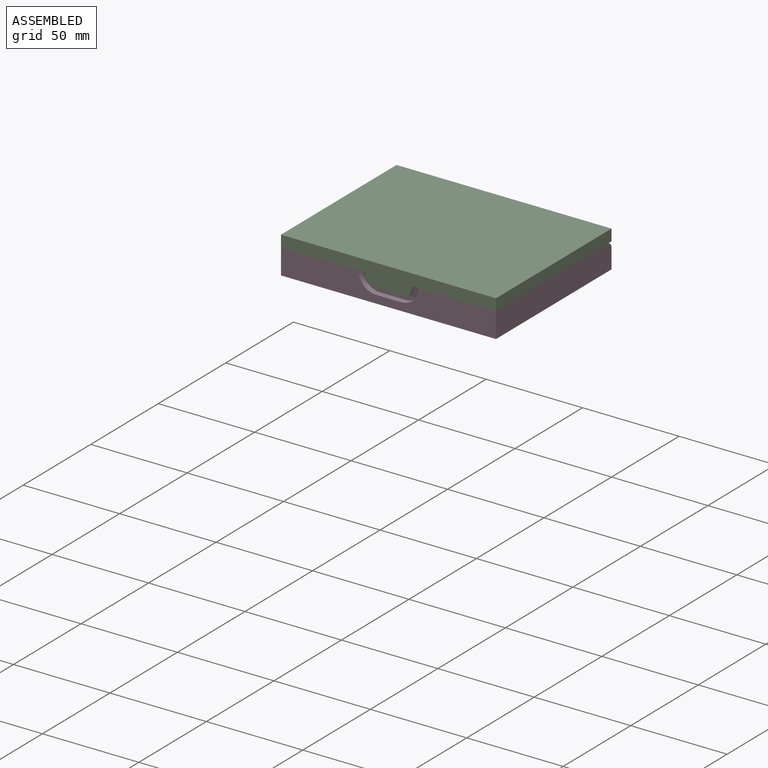
[diagram: assembled view]
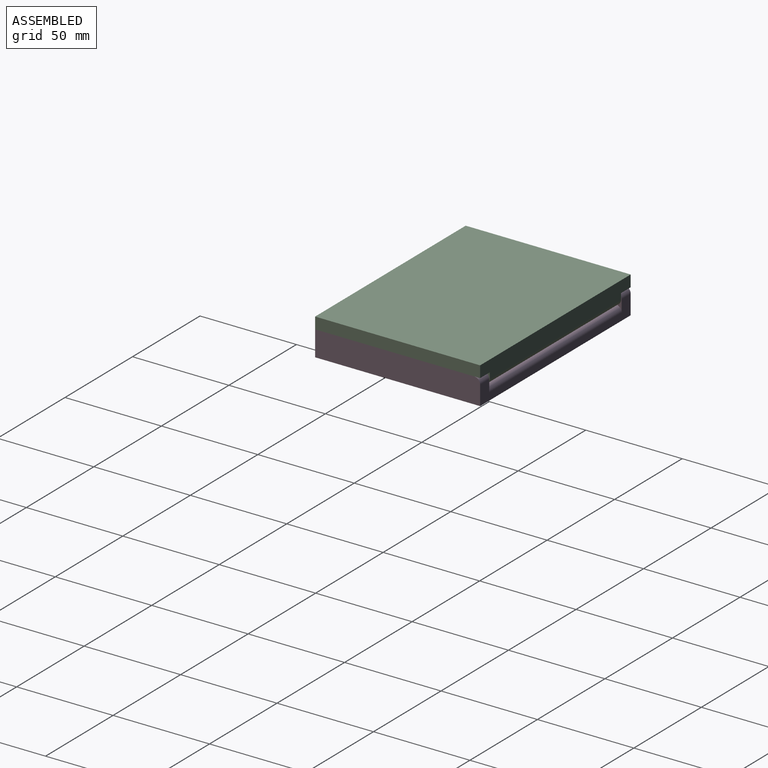
[diagram: assembled view, second angle]
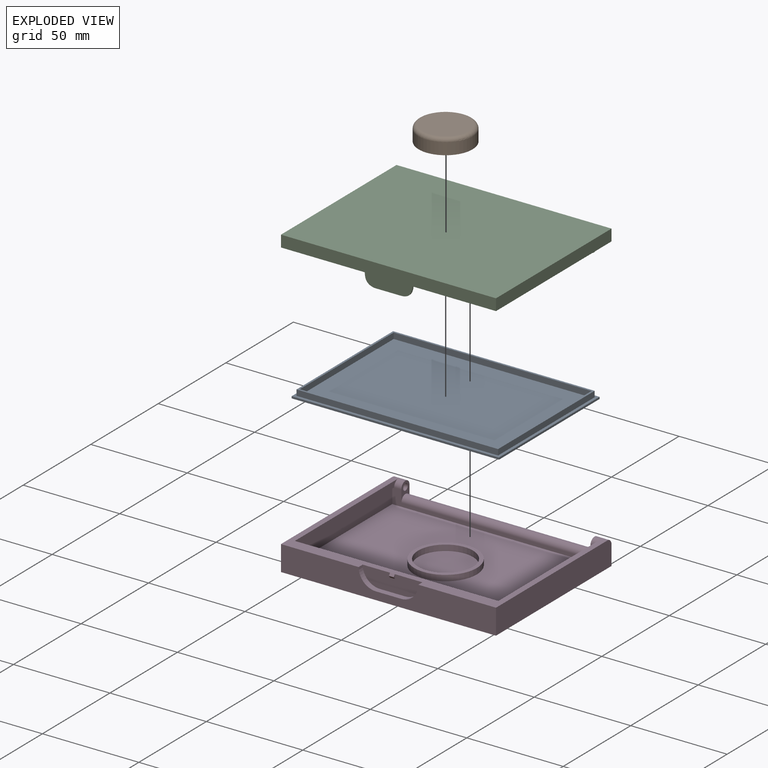
[diagram: exploded view]
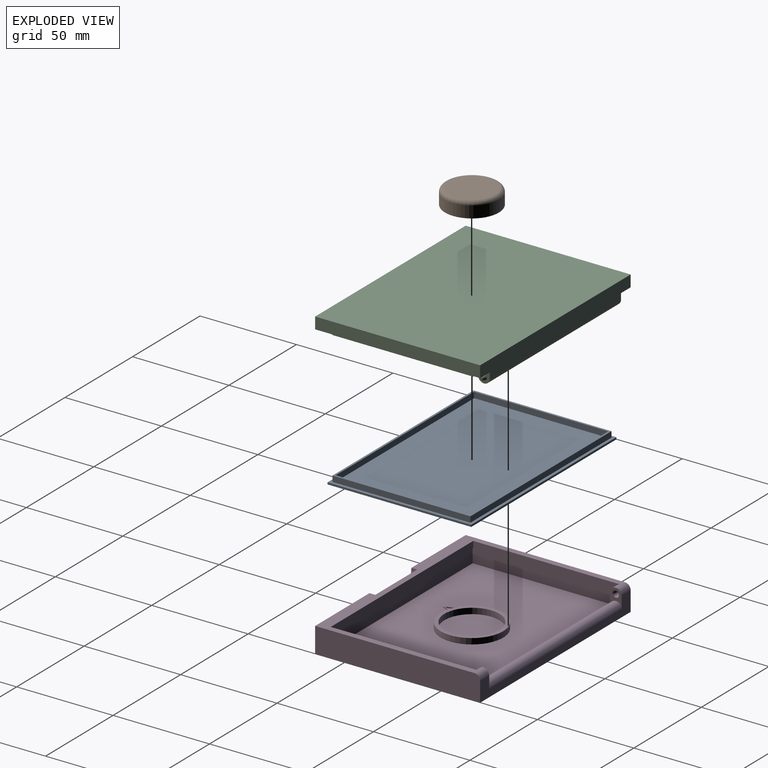
[diagram: exploded view, second angle]
ASSEMBLY  parts=4 mates=8
PART A: 22 faces, bbox 107.5x74.5x6.5 mm
  f0: plane 107.5x1mm, normal (0,1,0), area 107.5mm2, adj f1,f3,f4,f5
  f1: plane 74.5x1mm, normal (-1,0,0), area 74.5mm2, adj f0,f2,f4,f5
  f2: plane 107.5x1mm, normal (0,-1,0), area 107.5mm2, adj f1,f3,f4,f5
  f3: plane 74.5x1mm, normal (1,0,0), area 74.5mm2, adj f0,f2,f4,f5
  f4: plane 107.5x74.5mm, normal (0,0,-1), area 7725.2mm2, adj f0,f1,f2,f3,f16
  f5: plane 107.5x74.5mm, normal (0,0,1), area 537mm2, adj f0,f1,f2,f3,f6,f7,f8,f9
  f6: plane 104.5x3mm, normal (0,1,0), area 313.5mm2, adj f5,f7,f9,f10
  f7: plane 71.5x3mm, normal (-1,0,0), area 214.5mm2, adj f5,f6,f8,f10
  f8: plane 104.5x3mm, normal (0,-1,0), area 313.5mm2, adj f5,f7,f9,f10
  f9: plane 71.5x3mm, normal (1,0,0), area 214.5mm2, adj f5,f6,f8,f10
  f10: plane 104.5x71.5mm, normal (0,0,1), area 348mm2, adj f6,f7,f8,f9,f11,f12,f13,f14
  f11: plane 102.5x3mm, normal (0,1,0), area 307.5mm2, adj f10,f12,f14,f15
  f12: plane 69.5x3mm, normal (-1,0,0), area 208.5mm2, adj f10,f11,f13,f15
  f13: plane 102.5x3mm, normal (0,-1,0), area 307.5mm2, adj f10,f12,f14,f15
  f14: plane 69.5x3mm, normal (1,0,0), area 208.5mm2, adj f10,f11,f13,f15
  f15: plane 102.5x69.5mm, normal (0,0,1), area 7123.7mm2, adj f11,f12,f13,f14
  f16: cylinder r=9.5mm len=19mm, axis (0,0,1), area 59.7mm2, adj f4,f17
  f17: plane 19x19mm, normal (0,0,-1), area 267.6mm2, adj f16,f19
  f18: cylinder r=1mm len=2mm, axis (0,0,1), area 9.4mm2, adj f20,f21
  f19: cylinder r=2.25mm len=4.5mm, axis (0,0,1), area 21.2mm2, adj f17,f20
  f20: plane 4.5x4.5mm, normal (0,0,-1), area 12.8mm2, adj f18,f19
  f21: plane 2x2mm, normal (0,0,-1), area 3.1mm2, adj f18
PART B: 4 faces, bbox 30.3x30.3x8 mm
  f0: cylinder r=14mm len=28mm, axis (0,0,1), area 527.8mm2, adj f1,f3
  f1: plane 28x28mm, normal (0,0,-1), area 615.8mm2, adj f0
  f2: plane 24x24mm, normal (0,0,1), area 452.4mm2, adj f3
  f3: torus R=12mm, axis (0,0,1), area 262mm2, adj f0,f2
PART C: 45 faces, bbox 112x86.2x12.5 mm
  f0: plane 101.5x71.55mm, normal (0,0,-1), area 7259.1mm2, adj f4,f21,f22,f23,f24,f25,f26,f27
  f1: plane 21.09x4.49mm, normal (0,1,0), area 67.7mm2, adj f2,f18,f19,f20,f33,f34,f35
  f2: plane 112.01x86.06mm, normal (0,0,-1), area 1247.5mm2, adj f1,f5,f6,f7,f9,f11,f12,f14
  f3: plane 111.5x85.55mm, normal (0,0,1), area 9538.8mm2, adj f5,f6,f11,f15
  f4: plane 101.5x7mm, normal (0,-1,0), area 684.7mm2, adj f0,f7,f9,f10,f12,f14,f36,f38
  f5: plane 111.5x9mm, normal (0,1,0), area 960.6mm2, adj f2,f3,f6,f7,f10,f11,f12
  f6: plane 85.55x6mm, normal (-1,0,0), area 513.3mm2, adj f2,f3,f5,f15
  f7: plane 9x6mm, normal (-1,0,0), area 27mm2, adj f2,f4,f5,f8,f9,f10
  f8: sphere r=1.5mm, area 14.1mm2, adj f7
  f9: cylinder r=3mm len=3mm, axis (1,0,0), area 10.1mm2, adj f2,f4,f7,f38
  f10: cylinder r=3mm len=97.2mm, axis (-1,0,0), area 916.1mm2, adj f4,f5,f7,f12
  f11: plane 85.55x6mm, normal (1,0,0), area 513.3mm2, adj f2,f3,f5,f15
  f12: plane 9x6mm, normal (1,0,0), area 27mm2, adj f2,f4,f5,f10,f13,f14
  f13: sphere r=1.5mm, area 14.1mm2, adj f12
  f14: cylinder r=3mm len=3mm, axis (-1,0,0), area 10.1mm2, adj f2,f4,f12,f36
  f15: plane 111.5x12mm, normal (0,-1,0), area 804.6mm2, adj f2,f3,f6,f11,f16,f31,f32
  f16: plane 12.6x0.8mm, normal (0,0,-1), area 10.1mm2, adj f15,f31,f32,f34
  f17: plane 4x2.5mm, normal (0,1,0), area 10mm2, adj f2,f18,f19,f20
  f18: plane 4x1.2mm, normal (0,0,1), area 4.8mm2, adj f1,f17,f19,f20
  f19: plane 2.5x1.2mm, normal (1,0,0), area 3mm2, adj f1,f2,f17,f18
  f20: plane 2.5x1.2mm, normal (-1,0,0), area 3mm2, adj f1,f2,f17,f18
  f21: plane 0.5x0.47mm, normal (0,-1,0), area 0.2mm2, adj f0,f22,f29,f30
  f22: plane 2.41x0.85mm, normal (-0.94,-0.33,0), area 1.3mm2, adj f0,f21,f23,f30
  f23: extruded ~0.83x0.5mm, area 0.4mm2, adj f0,f22,f24,f30
  f24: extruded ~0.81x0.5mm, area 0.4mm2, adj f0,f23,f25,f30
  f25: plane 2.42x0.86mm, normal (0.94,-0.33,0), area 1.3mm2, adj f0,f24,f26,f30
  f26: plane 0.5x0.46mm, normal (0,-1,0), area 0.2mm2, adj f0,f25,f27,f30
  f27: plane 3.74x1.34mm, normal (-0.94,0.34,0), area 2mm2, adj f0,f26,f28,f30
  f28: plane 0.5x0.43mm, normal (0,1,0), area 0.2mm2, adj f0,f27,f29,f30
  f29: plane 3.74x1.35mm, normal (0.94,0.34,0), area 2mm2, adj f0,f21,f28,f30
  f30: plane 3.74x3.12mm, normal (0,0,-1), area 3.2mm2, adj f21,f22,f23,f24,f25,f26,f27,f28
  f31: bspline ~6x6mm, area 7.8mm2, adj f2,f15,f16,f35
  f32: bspline ~6x6mm, area 7.8mm2, adj f2,f15,f16,f33
  f33: bspline ~6.18x6mm, area 24.6mm2, adj f1,f2,f32,f34
  f34: bspline ~12.6x2mm, area 36.9mm2, adj f1,f16,f33,f35
  f35: bspline ~6.18x6mm, area 24.6mm2, adj f1,f2,f31,f34
  f36: plane 74.55x6.25mm, normal (-1,0,0), area 449.1mm2, adj f0,f2,f4,f14,f37,f40,f44
  f37: plane 101.5x6.25mm, normal (0,1,0), area 634.4mm2, adj f0,f36,f38,f44
  f38: plane 74.55x6.25mm, normal (1,0,0), area 449.1mm2, adj f0,f2,f4,f9,f37,f39,f44
  f39: plane 2.25x1.5mm, normal (0,1,0), area 3.4mm2, adj f2,f38,f43,f44
  f40: plane 2.25x1.5mm, normal (0,1,0), area 3.4mm2, adj f2,f36,f41,f44
  f41: plane 73.05x2.25mm, normal (1,0,0), area 164.4mm2, adj f2,f40,f42,f44
  f42: plane 104.5x2.25mm, normal (0,-1,0), area 235.1mm2, adj f2,f41,f43,f44
  f43: plane 73.05x2.25mm, normal (-1,0,0), area 164.4mm2, adj f2,f39,f42,f44
  f44: plane 104.5x73.05mm, normal (0,0,-1), area 371.4mm2, adj f36,f37,f38,f39,f40,f41,f42,f43
PART D: 45 faces, bbox 111.5x85.6x13.1 mm
  f0: cylinder r=3mm len=6.75mm, axis (1,0,0), area 49.5mm2, adj f3,f5,f6,f8,f12,f39
  f1: plane 74.55x8.1mm, normal (-1,0,0), area 603.9mm2, adj f8,f10,f11,f40
  f2: cylinder r=3mm len=6.75mm, axis (-1,0,0), area 49.5mm2, adj f3,f5,f8,f15,f16,f37
  f3: plane 111.5x82.55mm, normal (0,0,1), area 1035.3mm2, adj f0,f2,f4,f6,f15,f19,f20,f35
  f4: plane 111.5x13.1mm, normal (0,-1,0), area 1216.4mm2, adj f3,f6,f7,f15,f18,f35,f36
  f5: plane 111.5x10.1mm, normal (0,1,0), area 518.6mm2, adj f0,f2,f6,f7,f12,f14,f15,f16
  f6: plane 85.55x13.1mm, normal (-1,0,0), area 1118.8mm2, adj f0,f3,f4,f5,f7
  f7: plane 111.5x85.55mm, normal (0,0,-1), area 9538.8mm2, adj f4,f5,f6,f15
  f8: plane 107.5x8.1mm, normal (0,-1,0), area 263.2mm2, adj f0,f1,f2,f9,f11,f12,f14,f16
  f9: plane 74.55x8.1mm, normal (1,0,0), area 603.9mm2, adj f8,f10,f11,f40
  f10: plane 107.5x8.1mm, normal (0,1,0), area 870.8mm2, adj f1,f9,f11,f40
  f11: plane 107.5x74.55mm, normal (0,0,1), area 7180.1mm2, adj f1,f8,f9,f10,f25,f26,f27,f28
  f12: plane 9.2x6mm, normal (1,0,0), area 28.1mm2, adj f0,f5,f8,f13,f14
  f13: sphere r=1.7mm, area 18.2mm2, adj f12
  f14: cylinder r=3mm len=98mm, axis (1,0,0), area 923.6mm2, adj f5,f8,f12,f16
  f15: plane 85.55x13.1mm, normal (1,0,0), area 1118.8mm2, adj f2,f3,f4,f5,f7
  f16: plane 9.2x6mm, normal (-1,0,0), area 28.1mm2, adj f2,f5,f8,f14,f17
  f17: sphere r=1.7mm, area 18.2mm2, adj f16
  f18: plane 13x3mm, normal (0,0,1), area 39mm2, adj f4,f19,f35,f36
  f19: plane 31x9mm, normal (0,-1,0), area 238.6mm2, adj f3,f18,f21,f22,f23,f35,f36
  f20: plane 2.5x0.98mm, normal (0,-0.75,0.67), area 3.3mm2, adj f3,f22,f23,f24
  f21: plane 2.5x0.98mm, normal (0,-0.75,-0.67), area 3.3mm2, adj f19,f22,f23,f24
  f22: plane 2.24x0.93mm, normal (1,0,0), area 1.1mm2, adj f19,f20,f21,f24
  f23: plane 2.24x0.93mm, normal (-1,0,0), area 1.1mm2, adj f19,f20,f21,f24
  f24: cylinder r=0.2mm len=2.5mm, axis (-1,0,0), area 0.7mm2, adj f20,f21,f22,f23
  f25: plane 0.55x0.5mm, normal (0,1,0), area 0.3mm2, adj f11,f26,f33,f34
  f26: plane 2.81x1mm, normal (-0.94,0.33,0), area 1.5mm2, adj f11,f25,f27,f34
  f27: extruded ~0.97x0.5mm, area 0.5mm2, adj f11,f26,f28,f34
  f28: extruded ~0.95x0.5mm, area 0.5mm2, adj f11,f27,f29,f34
  f29: plane 2.83x1mm, normal (0.94,0.33,0), area 1.5mm2, adj f11,f28,f30,f34
  f30: plane 0.54x0.5mm, normal (0,1,0), area 0.3mm2, adj f11,f29,f31,f34
  f31: plane 4.37x1.57mm, normal (-0.94,-0.34,0), area 2.3mm2, adj f11,f30,f32,f34
  f32: plane 0.5x0.5mm, normal (0,-1,0), area 0.3mm2, adj f11,f31,f33,f34
  f33: plane 4.37x1.58mm, normal (0.94,-0.34,0), area 2.3mm2, adj f11,f25,f32,f34
  f34: plane 4.37x3.64mm, normal (0,0,1), area 4.4mm2, adj f25,f26,f27,f28,f29,f30,f31,f32
  f35: cylinder r=9mm len=9mm, axis (0,-1,0), area 42.4mm2, adj f3,f4,f18,f19
  f36: cylinder r=9mm len=9mm, axis (0,1,0), area 42.4mm2, adj f3,f4,f18,f19
  f37: plane 76.55x3mm, normal (-1,0,0), area 222.6mm2, adj f2,f3,f38,f40
  f38: plane 105.5x3mm, normal (0,1,0), area 316.5mm2, adj f3,f37,f39,f40
  f39: plane 76.55x3mm, normal (1,0,0), area 222.6mm2, adj f0,f3,f38,f40
  f40: plane 107.5x74.55mm, normal (0,0,-1), area 254.6mm2, adj f1,f8,f9,f10,f37,f38,f39
  f41: cylinder r=14.25mm len=28.5mm, axis (0,0,-1), area 268.6mm2, adj f43,f44
  f42: cylinder r=16.25mm len=32.5mm, axis (0,0,-1), area 306.3mm2, adj f11,f43
  f43: plane 32.5x32.5mm, normal (0,0,1), area 191.6mm2, adj f41,f42
  f44: plane 28.5x28.5mm, normal (0,0,1), area 637.9mm2, adj f41
PLACE A t=(98.16,29.8,63.54)mm
PLACE B t=(98.17,29.79,64.44)mm
PLACE C t=(98.16,29.77,66.54)mm
PLACE D t=(98.16,29.77,66.54)mm
MATE planar A.f16 <-> D.f40  axis (0,0,1) through (98.16,29.8,63.54)mm
MATE planar A.f3 <-> D.f1  axis (1,0,0) through (151.91,29.8,63.04)mm
MATE planar D.f44 <-> B.f0  axis (0,0,1) through (98.17,29.79,55.44)mm
MATE planar D.f4 <-> C.f15  axis (0,-1,0) through (98.16,-12.5,59.5)mm
MATE planar C.f2 <-> D.f3  axis (0,0,-1) through (98.16,11.79,66.54)mm
MATE planar A.f0 <-> D.f8  axis (0,1,0) through (98.16,67.05,63.04)mm
MATE slider D.f44 <-> B.f0  axis (0,0,1) through (98.17,29.79,55.44)mm
MATE planar C.f11 <-> D.f15  axis (1,0,0) through (153.91,30.27,69.54)mm
